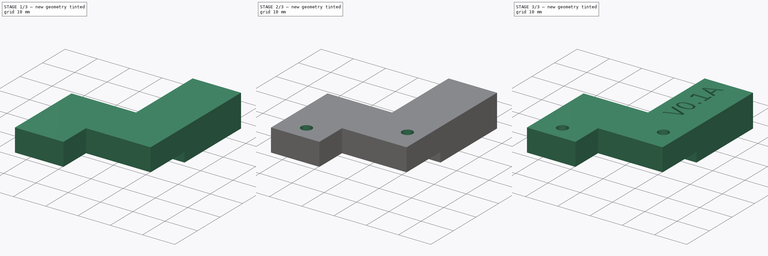
[diagram: build sequence overview — one tinted view per stage of 3, left to right]
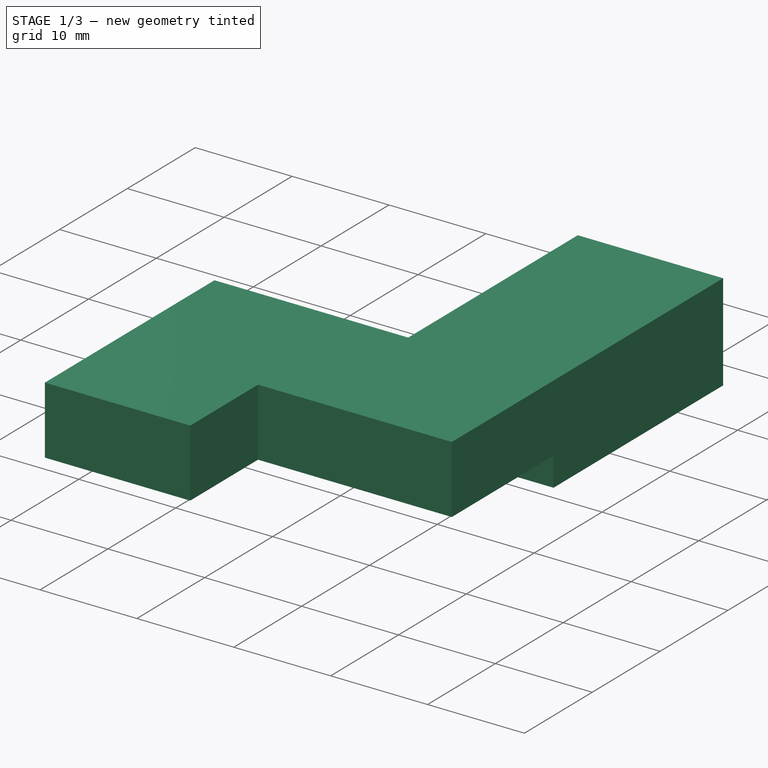
[diagram: stage 1 of 3 — iso view after this stage's code; geometry added in this stage tinted green]
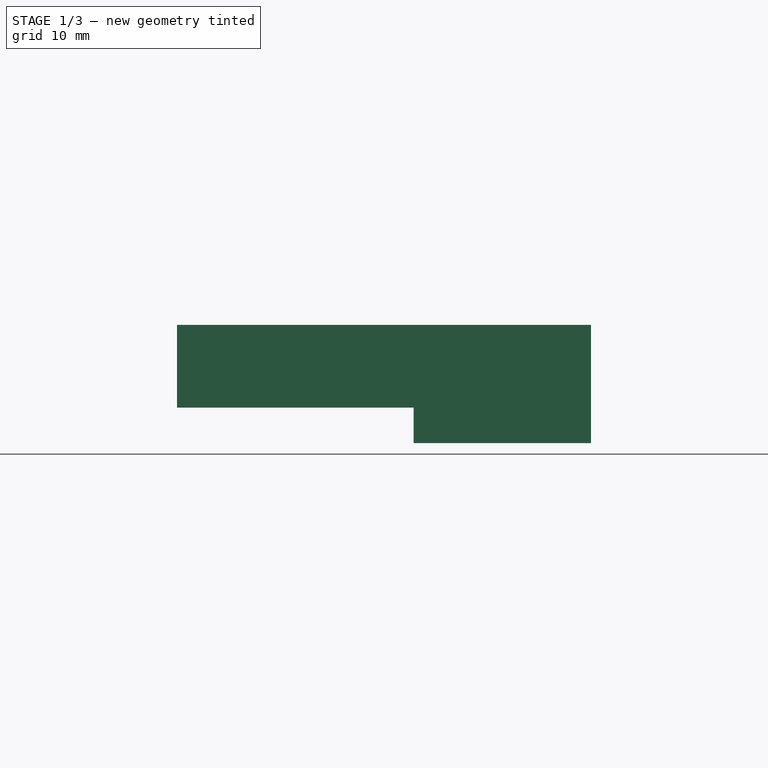
[diagram: stage 1 of 3 — front view after this stage's code; geometry added in this stage tinted green]
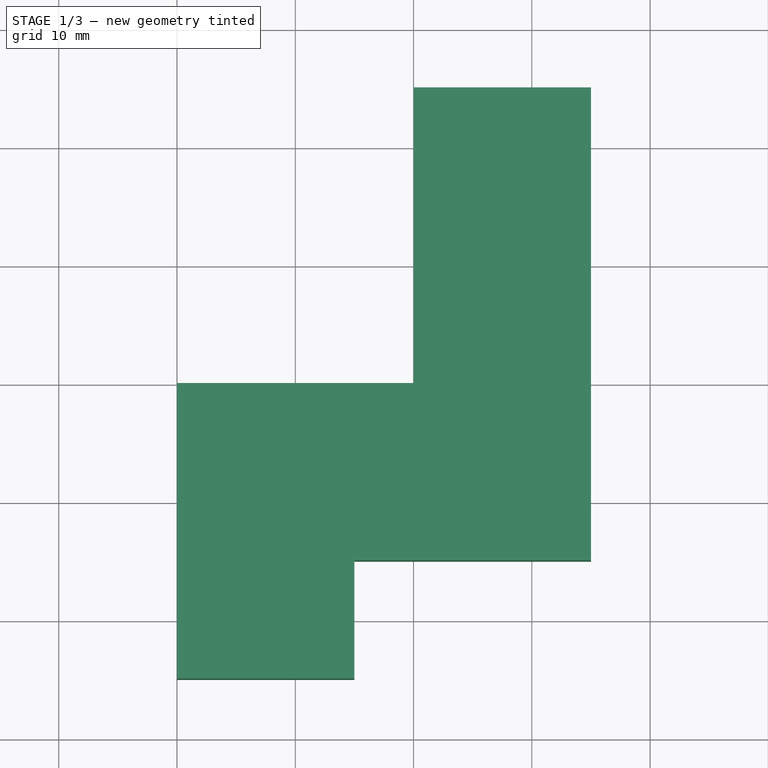
[diagram: stage 1 of 3 — top view after this stage's code; geometry added in this stage tinted green]
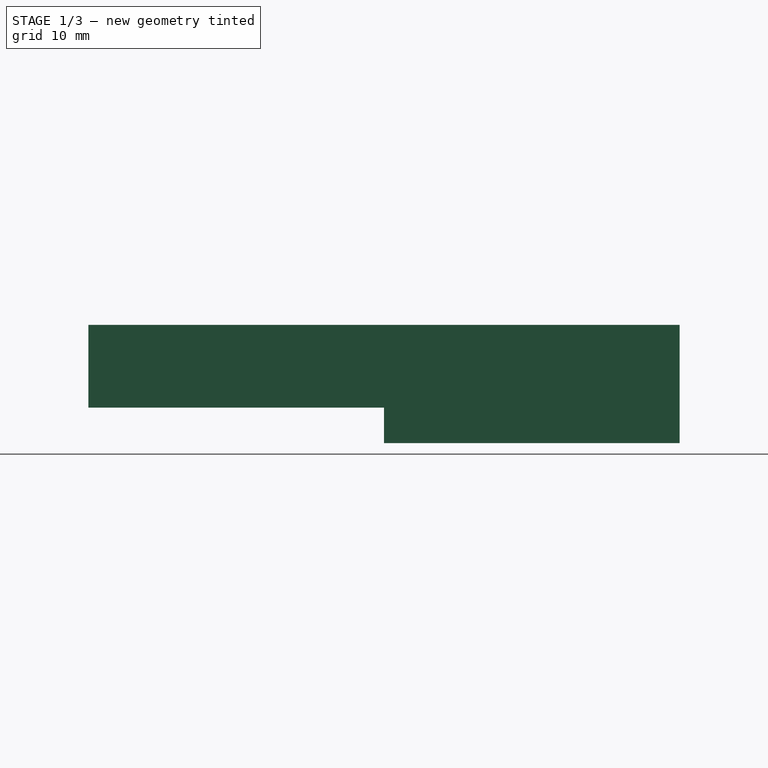
[diagram: stage 1 of 3 — right view after this stage's code; geometry added in this stage tinted green]
FCSTD DOCUMENT  (FreeCAD 1.0R39109 (Git))
Label: Front_Wheel_Mount
License: All rights reserved
LicenseURL: https://en.wikipedia.org/wiki/All_rights_reserved
objects: Sketcher::SketchObject×5, PartDesign::Pad×2, PartDesign::Pocket×2, PartDesign::Fillet×1, Part::Part2DObjectPython×1, Part::Extrusion×1, PartDesign::Body×1, Part::Cut×1, Spreadsheet::Sheet×1
note: 29 computed .brp shape members not serialized (recipe doc carries the construction recipe); baked Part::Feature solids carry a one-line shape summary decoded from their .brp

FEATURE [Sketcher::SketchObject] Sketch
  ArcFitTolerance = 1e-06
  AttachmentSupport = -> [XY_Plane]
  FullyConstrained = true
  MakeInternals = false
  MapMode = 5
  sketch-geometry (4):
    g0: LineSegment StartX=0 StartY=-1e-16 StartZ=0 EndX=15 EndY=-1e-16 EndZ=0
    g1: LineSegment StartX=15 StartY=-1e-16 StartZ=0 EndX=15 EndY=25 EndZ=0
    g2: LineSegment StartX=15 StartY=25 StartZ=0 EndX=0 EndY=25 EndZ=0
    g3: LineSegment StartX=0 StartY=25 StartZ=0 EndX=0 EndY=0 EndZ=0
  constraints (11):
    c: Coincident(g0,g1)
    c: Coincident(g1,g2)
    c: Coincident(g2,g3)
    c: Coincident(g3,g0)
    c: Horizontal(g0)
    c: Horizontal(g2)
    c: Vertical(g1)
    c: Vertical(g3)
    c: Distance(g1,g3) = 15
    c: Distance(g0,g2) = 25
    c: Coincident(g0,g-1)
FEATURE [PartDesign::Pad] Pad
  Direction = (0,0,1)
  Length = 10
  Length2 = 10
  Profile = -> Sketch
  ReferenceAxis = -> Sketch [N_Axis]
  Refine = true
  Suppressed = false
  Type = 0
FEATURE [Sketcher::SketchObject] Sketch001
  ArcFitTolerance = 1e-06
  AttachmentSupport = -> [Pad]
  ExternalGeometry = -> [Pad]
  FullyConstrained = true
  MakeInternals = false
  MapMode = 5
  Placement = pos=(0,0,10) rot=(0,0,1;0rad)
  sketch-geometry (6):
    g0: LineSegment StartX=15 StartY=0 StartZ=0 EndX=-20 EndY=0 EndZ=0
    g1: LineSegment StartX=-20 StartY=0 StartZ=0 EndX=-20 EndY=-25 EndZ=0
    g2: LineSegment StartX=-20 StartY=-25 StartZ=0 EndX=-5 EndY=-25 EndZ=0
    g3: LineSegment StartX=-5 StartY=-25 StartZ=0 EndX=-5 EndY=-15 EndZ=0
    g4: LineSegment StartX=-5 StartY=-15 StartZ=0 EndX=15 EndY=-15 EndZ=0
    g5: LineSegment StartX=15 StartY=-15 StartZ=0 EndX=15 EndY=0 EndZ=0
  constraints (17):
    c: Distance(g0) = 35
    c: Coincident(g0,g-3)
    c: PointOnObject(g0,g-1)
    c: Distance(g1) = 25
    c: Coincident(g1,g0)
    c: Vertical(g1)
    c: Distance(g2) = 15
    c: Coincident(g2,g1)
    c: Horizontal(g2)
    c: Distance(g3) = 10
    c: Coincident(g3,g2)
    c: Vertical(g3)
    c: Distance(g4) = 20
    c: Coincident(g4,g3)
    c: Horizontal(g4)
    c: Coincident(g5,g4)
    c: Coincident(g5,g0)
FEATURE [PartDesign::Pad] Pad001
  BaseFeature = -> Pad
  Direction = (0,0,1)
  Length = 7
  Length2 = 10
  Profile = -> Sketch001
  ReferenceAxis = -> Sketch001 [N_Axis]
  Refine = true
  Reversed = true
  Suppressed = false
  Type = 0
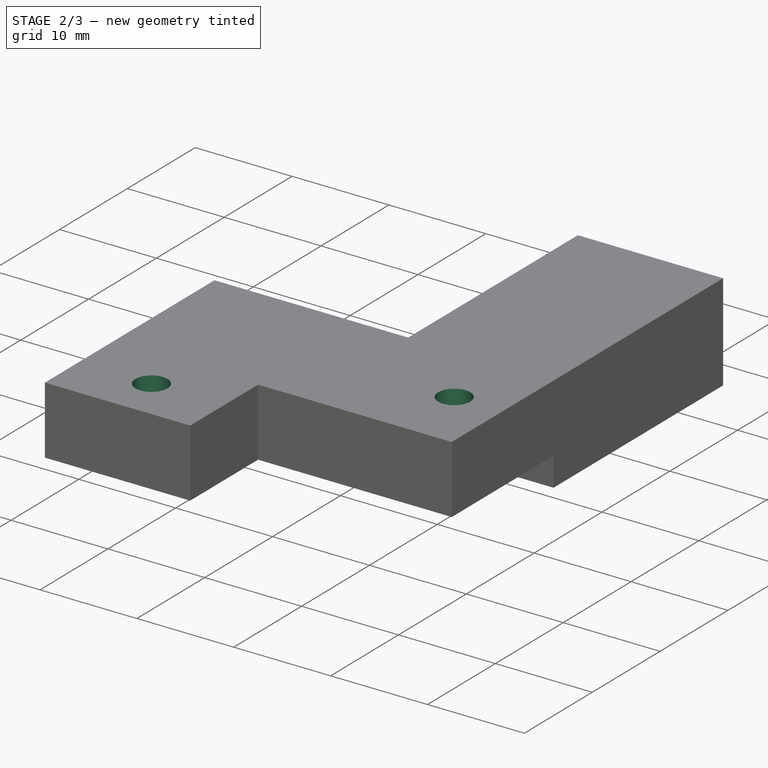
[diagram: stage 2 of 3 — iso view after this stage's code; geometry added in this stage tinted green]
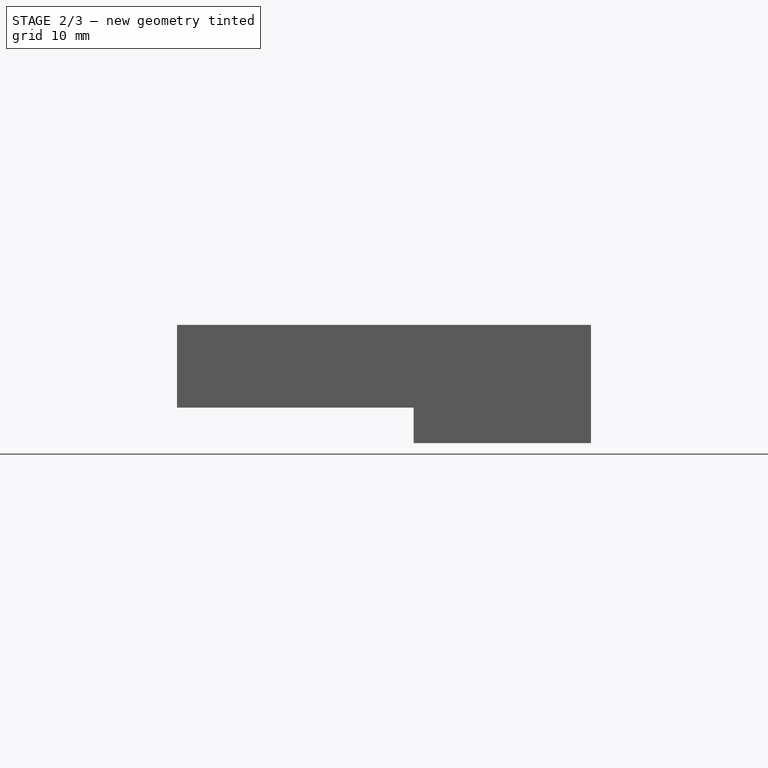
[diagram: stage 2 of 3 — front view after this stage's code; geometry added in this stage tinted green]
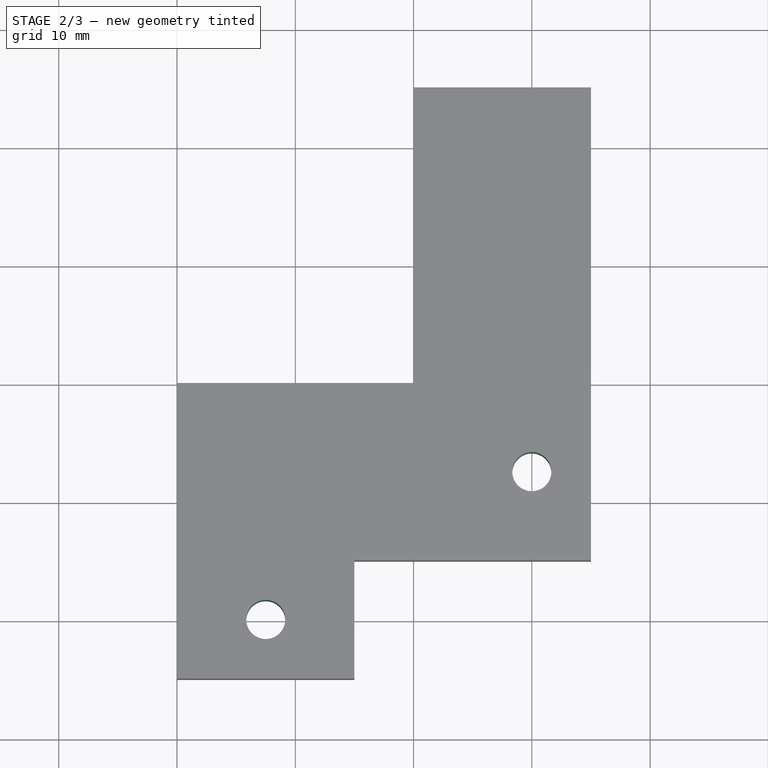
[diagram: stage 2 of 3 — top view after this stage's code; geometry added in this stage tinted green]
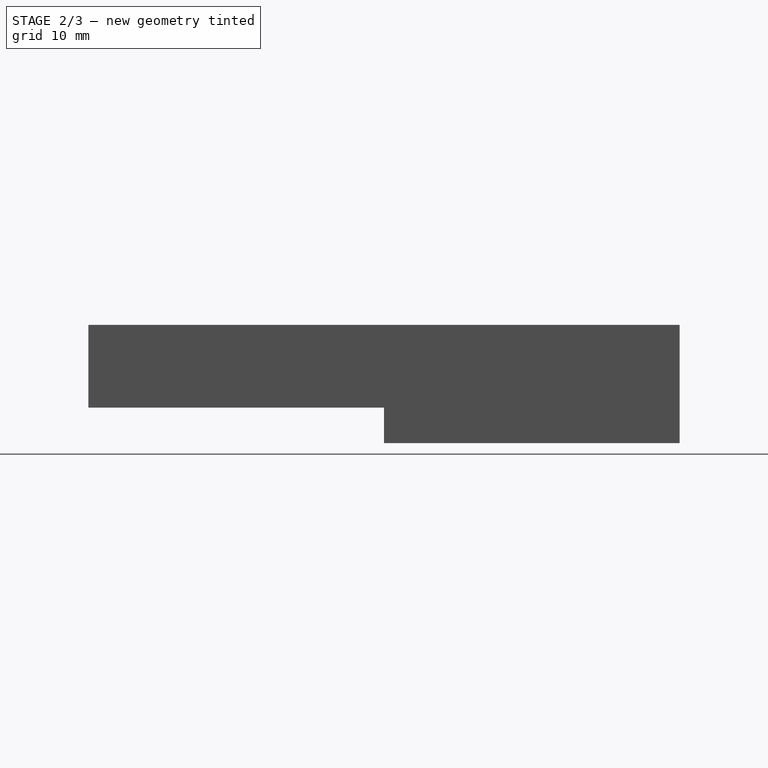
[diagram: stage 2 of 3 — right view after this stage's code; geometry added in this stage tinted green]
FEATURE [Sketcher::SketchObject] Sketch002
  ArcFitTolerance = 1e-06
  AttachmentSupport = -> [Pad001]
  ExternalGeometry = -> [Pad001]
  FullyConstrained = true
  MakeInternals = false
  MapMode = 5
  Placement = pos=(0,0,0) rot=(1,0,0;3.14159rad)
  sketch-geometry (2):
    g0: LineSegment [constr] StartX=7.5 StartY=-25 StartZ=0 EndX=7.5 EndY=15 EndZ=0
    g1: Circle CenterX=7.5 CenterY=-19 CenterZ=0 NormalX=0 NormalY=0 NormalZ=1 AngleXU=0 Radius=2.1
  constraints (6):
    c: Symmetric(g-3,g-3,g0)
    c: PointOnObject(g0,g-4)
    c: Vertical(g0)
    c: Diameter(g1) = 4.2
    c: PointOnObject(g1,g0)
    c: Distance(g1,g-3) = 6
FEATURE [PartDesign::Pocket] Pocket  label="Mounting Pin Hole"
  BaseFeature = -> Pad001
  Direction = (0,0,1)
  Length = 7
  Length2 = 5
  Profile = -> Sketch002
  ReferenceAxis = -> Sketch002 [N_Axis]
  Refine = true
  Suppressed = false
  Type = 0
FEATURE [Sketcher::SketchObject] Sketch003
  ArcFitTolerance = 1e-06
  AttachmentSupport = -> [Pocket]
  ExternalGeometry = -> [Pocket]
  FullyConstrained = true
  MakeInternals = false
  MapMode = 5
  Placement = pos=(0,0,10) rot=(0,0,1;0rad)
  sketch-geometry (3):
    g0: LineSegment [constr] StartX=-12.5 StartY=-25 StartZ=0 EndX=-12.5 EndY=0 EndZ=0
    g1: Circle CenterX=-12.5 CenterY=-20 CenterZ=0 NormalX=0 NormalY=0 NormalZ=1 AngleXU=0 Radius=1.65
    g2: Circle CenterX=10 CenterY=-7.5 CenterZ=0 NormalX=0 NormalY=0 NormalZ=1 AngleXU=0 Radius=1.65
  constraints (9):
    c: Symmetric(g-3,g-3,g0)
    c: PointOnObject(g0,g-4)
    c: Vertical(g0)
    c: Diameter(g1) = 3.3
    c: PointOnObject(g1,g0)
    c: Distance(g1,g-3) = 5
    c: Diameter(g2) = 3.3
    c: Distance(g2,g-5) = 7.5
    c: DistanceX(g2,g-5) = 5
FEATURE [PartDesign::Pocket] Pocket001
  BaseFeature = -> Pocket
  Direction = (0,0,-1)
  Length = 0
  Length2 = 5
  Profile = -> Sketch003
  ReferenceAxis = -> Sketch003 [N_Axis]
  Refine = true
  Suppressed = false
  Type = 3
  UpToFace = -> Pocket [Face4]
FEATURE [Part::Part2DObjectPython] ShapeString  # Draft 2D object (typed FeaturePython)
  FontFile = <path>
  Fuse = false
  Justification = 6
  JustificationReference = 0
  KeepLeftMargin = false
  MakeFace = true
  ObliqueAngle = 0
  ScaleToSize = true
  Size = 5
  String = V0.1A
  Tracking = 0
  expr: String = <<V>> + <<Info>>.MajorV + <<Info>>.MinorV
FEATURE [Part::Extrusion] Extrude
  Base = -> ShapeString
  Dir = (0,0,1)
  DirMode = 2
  FaceMakerClass = Part::FaceMakerBullseye
  FaceMakerMode = 3
  LengthFwd = 1
  LengthRev = 0
  Placement = pos=(8,2,9) rot=(0,0,1;1.5708rad)
  Solid = false
  Symmetric = false
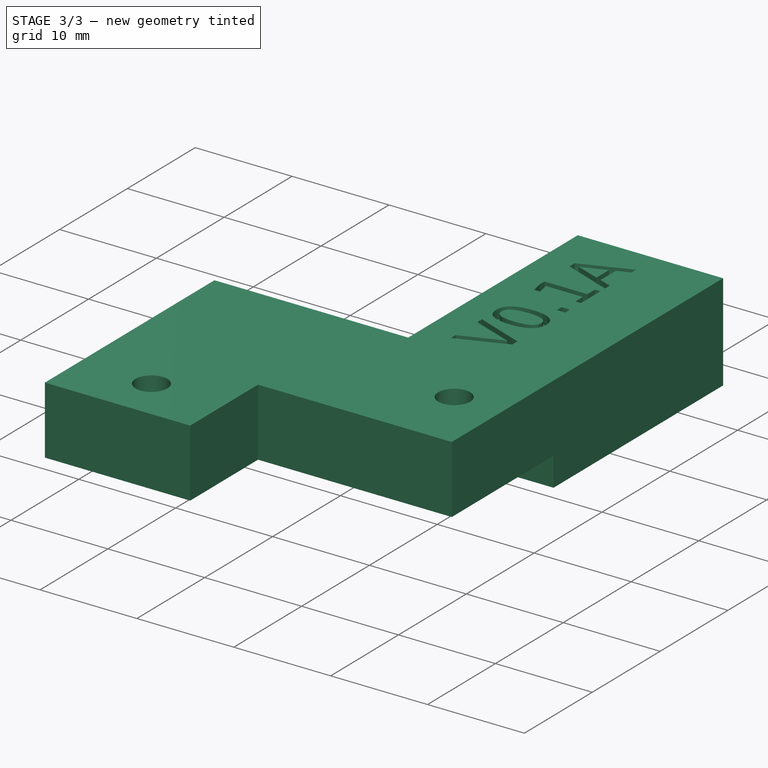
[diagram: stage 3 of 3 — iso view after this stage's code; geometry added in this stage tinted green]
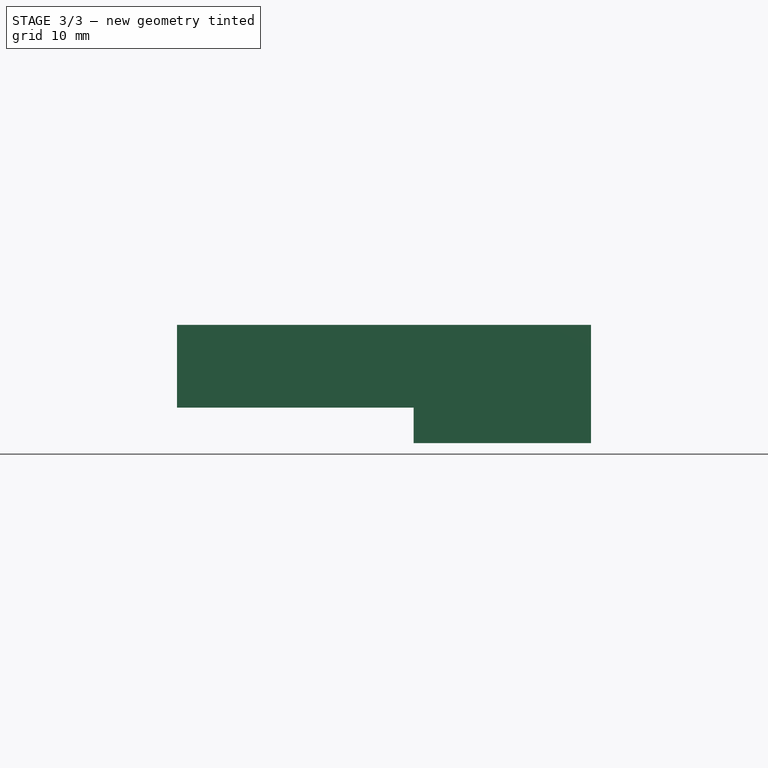
[diagram: stage 3 of 3 — front view after this stage's code; geometry added in this stage tinted green]
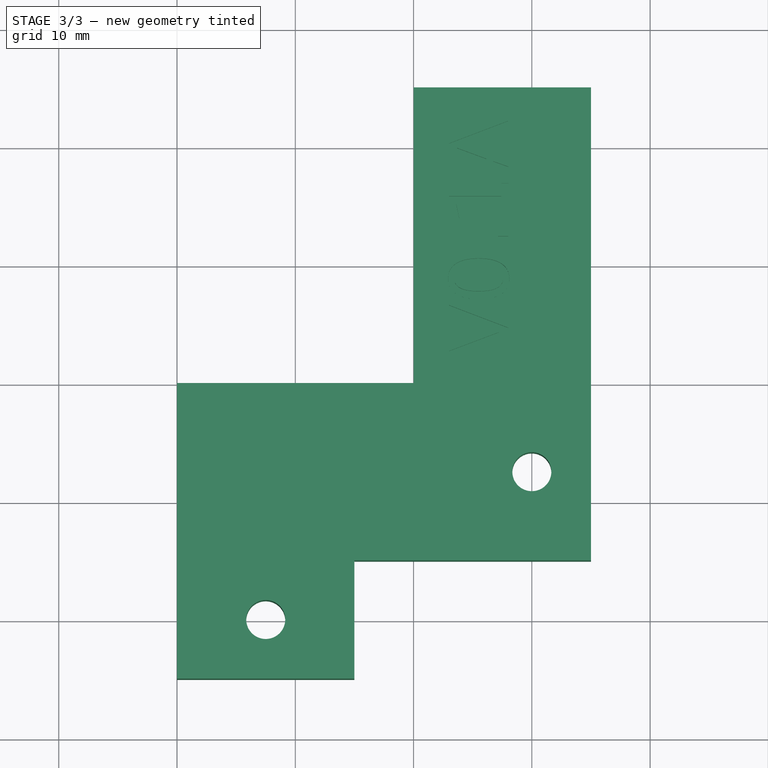
[diagram: stage 3 of 3 — top view after this stage's code; geometry added in this stage tinted green]
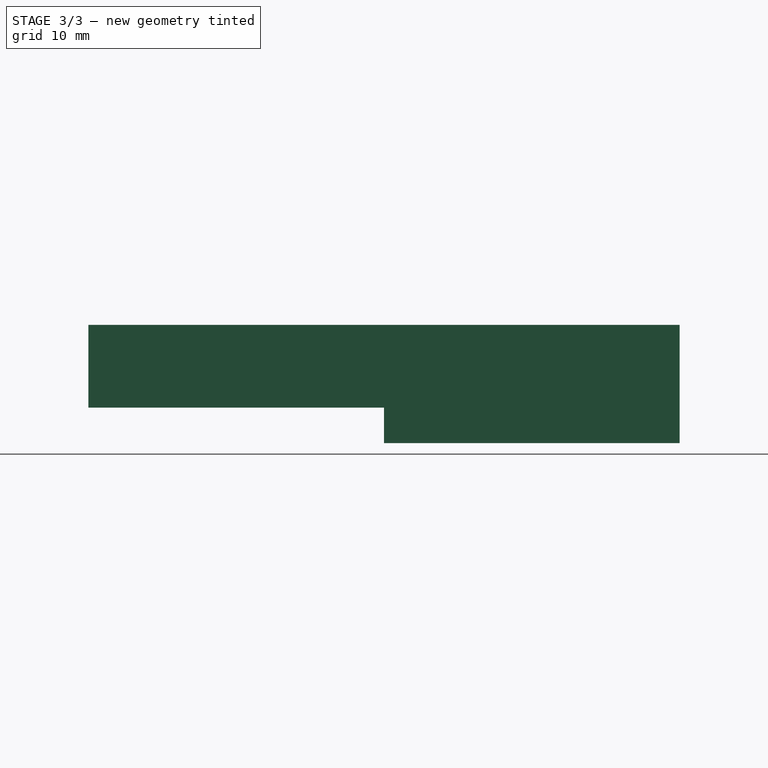
[diagram: stage 3 of 3 — right view after this stage's code; geometry added in this stage tinted green]
FEATURE [PartDesign::Fillet] Fillet
  Base = -> Pocket001 [Edge26,Edge27,Edge28,Edge30,Edge29,Edge22,Edge23,Edge10,Edge35,Edge36,Edge11,Edge34,Edge20,Edge21,Edge33,Edge9]
  BaseFeature = -> Pocket001
  Radius = 0.5
  Refine = true
  SupportTransform = false
  Suppressed = true
  UseAllEdges = false
FEATURE [Sketcher::SketchObject] Sketch004
  ArcFitTolerance = 1e-06
  AttachmentSupport = -> [Pocket001]
  ExternalGeometry = -> [Pocket001]
  FullyConstrained = true
  MakeInternals = false
  MapMode = 5
  Placement = pos=(0,0,10) rot=(0,0,1;0rad)
  sketch-geometry (1):
    g0: LineSegment StartX=3 StartY=22 StartZ=0 EndX=3 EndY=2 EndZ=0
  constraints (4):
    c: Distance(g0) = 20
    c: Vertical(g0)
    c: Distance(g0,g-2) = 3
    c: Distance(g0,g-3) = 3
FEATURE [PartDesign::Body] Body  label="Mount"
  AllowCompound = false
  Group = -> [Sketch,Pad,Sketch001,Pad001,Sketch002,Pocket,Sketch003,Pocket001,Fillet,Sketch004]
  Origin = -> Origin
  Tip = -> Fillet
FEATURE [Part::Cut] Cut  label="Front_Wheel_Mount_V0.1A"
  Base = -> Body
  Refine = true
  Tool = -> Extrude
  expr: Label = <<Info>>.Name + <<_V>> + <<Info>>.MajorV + <<Info>>.MinorV
FEATURE [Spreadsheet::Sheet] Spreadsheet  label="Info"
  cells = A1='Name; B1(Name)='Front_Wheel_Mount; A2='Major Version; B2(MajorV)='0.1; A3='Minor Version; B3(MinorV)='A
note: 1 file-system path scrubbed to <path> (originals preserved in the JSON sidecar)
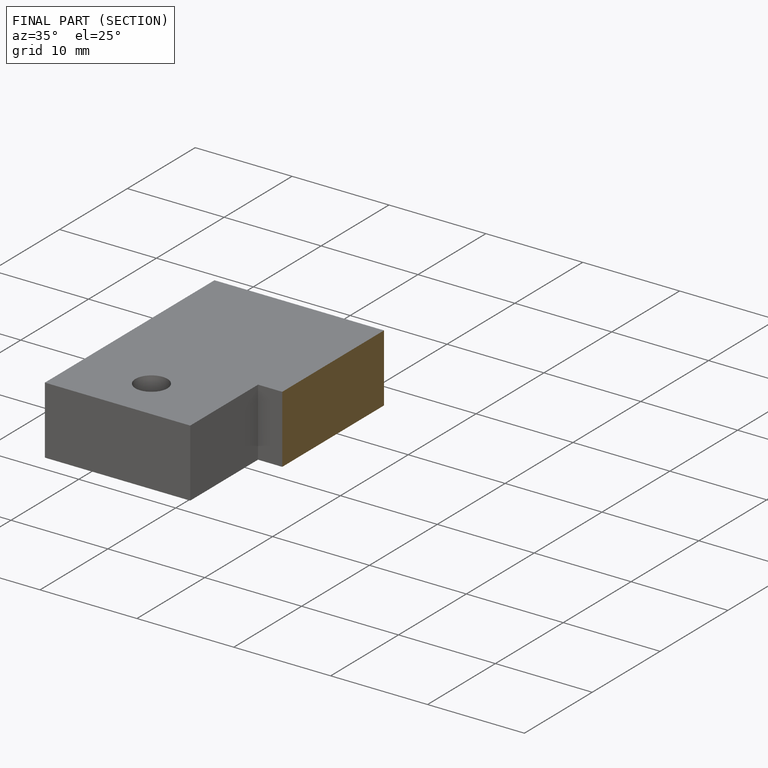
[diagram: finished part — half-section view (interior)]
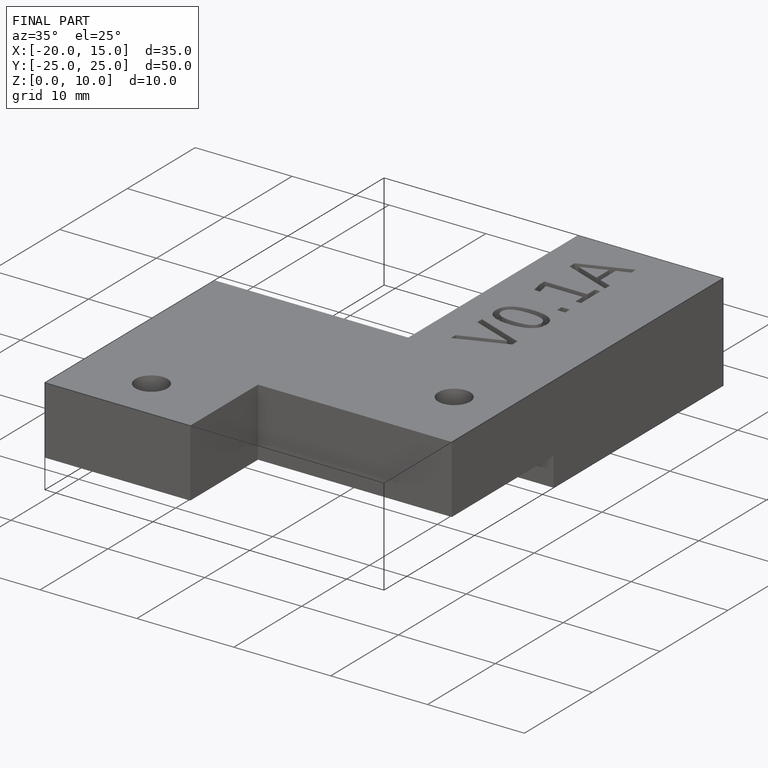
[diagram: finished part — iso view with bounding-box wireframe]
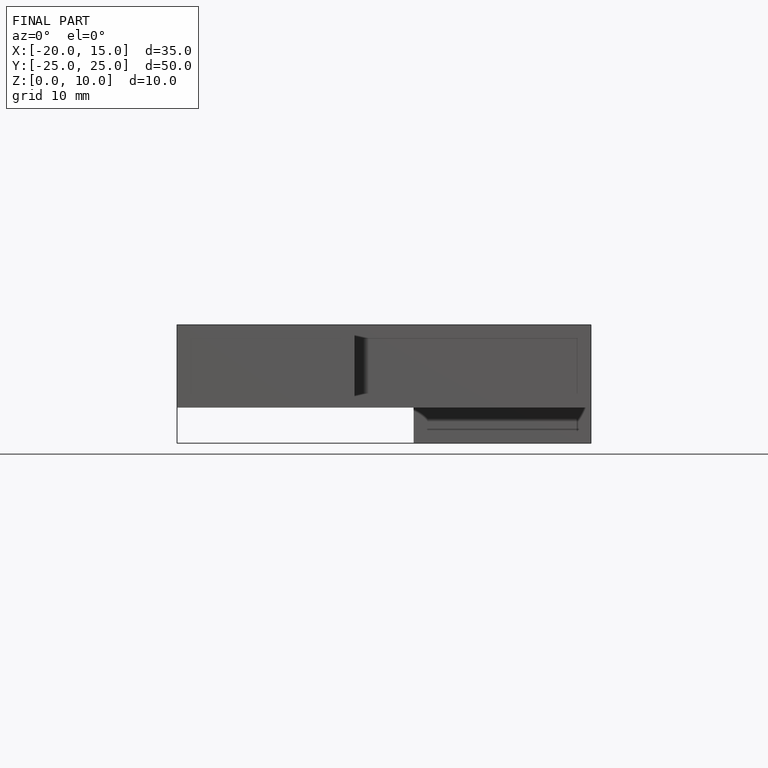
[diagram: finished part — front view with bounding-box wireframe]
